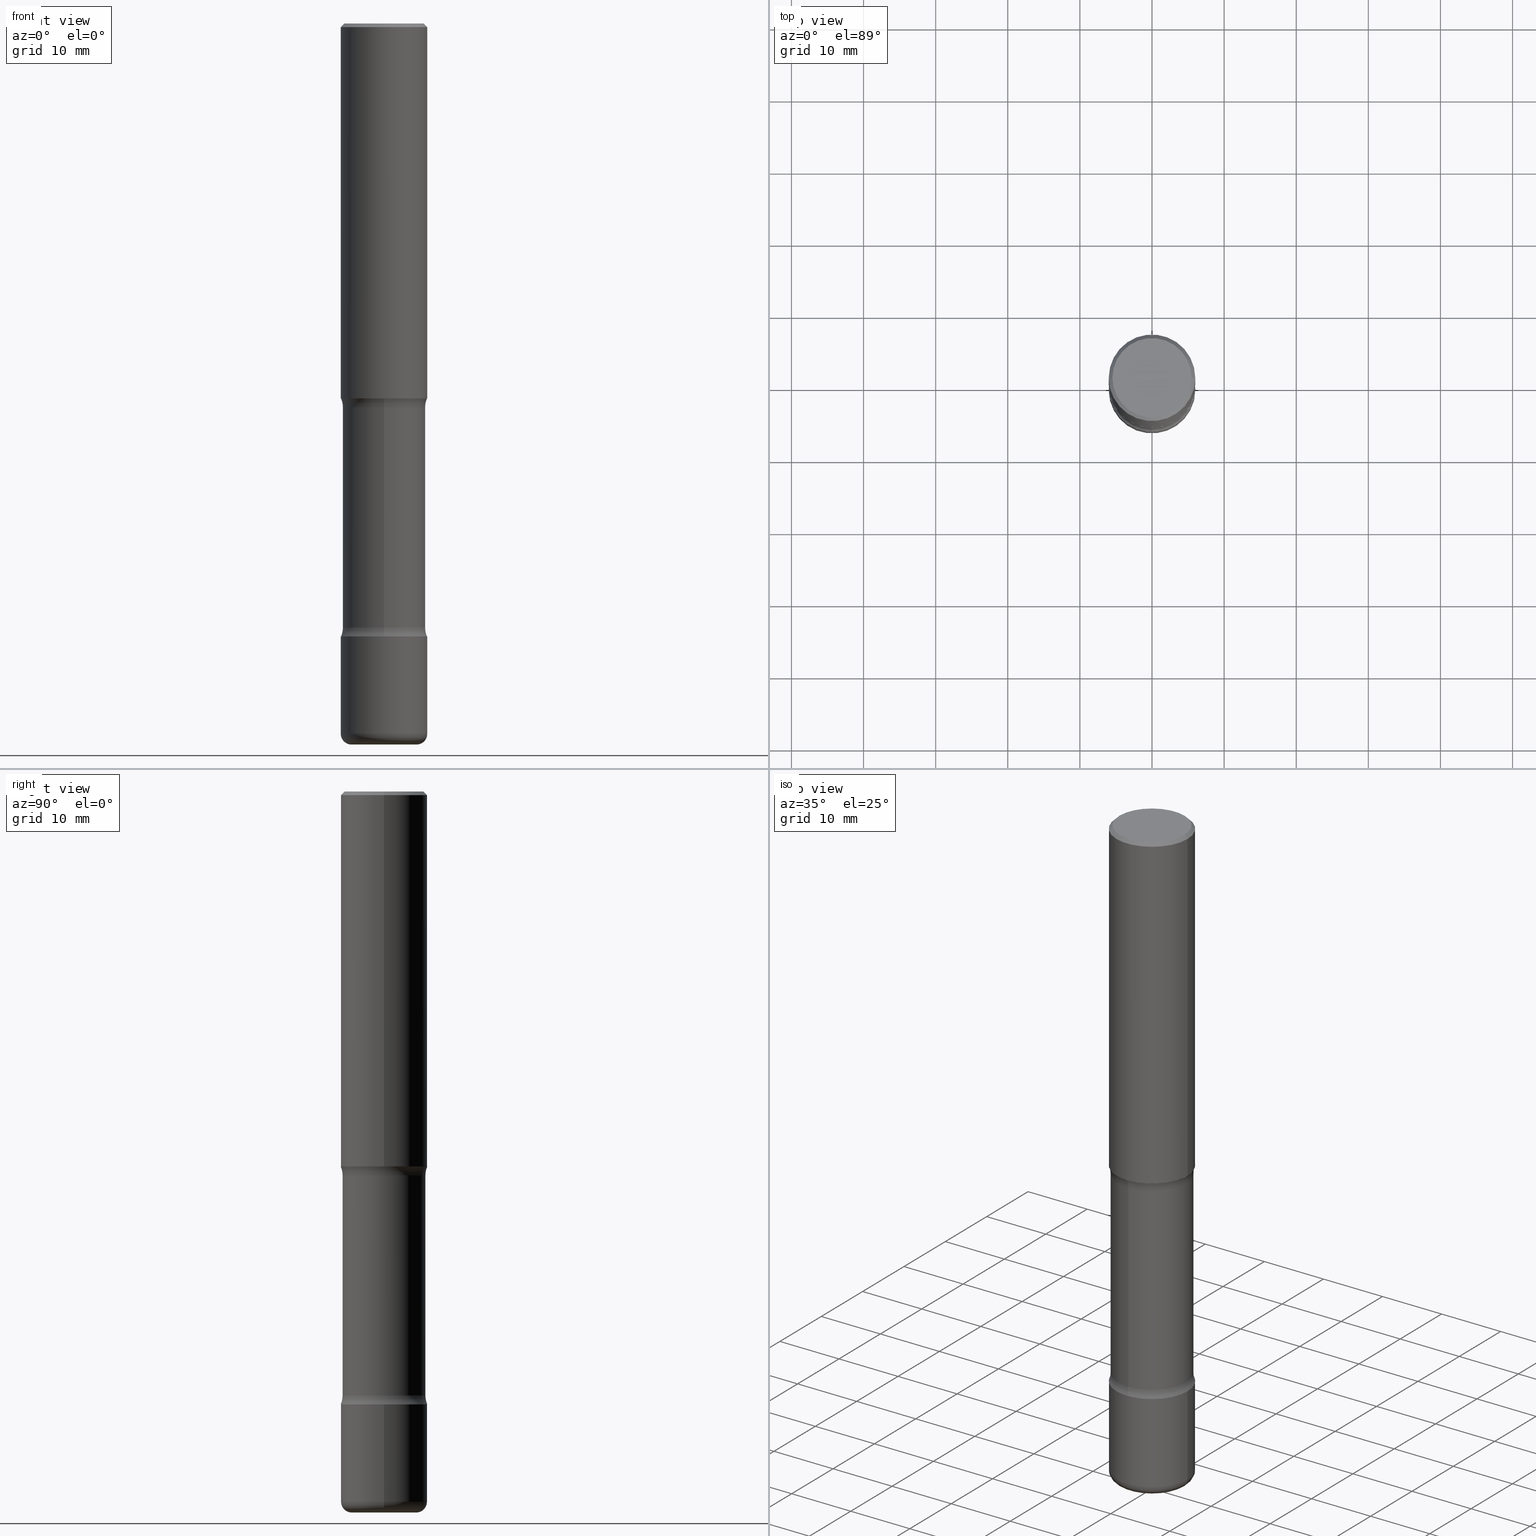
[diagram: canonical four-view strip — front | top / right | iso, engineering-drawing reading convention]
A machine part, canonical four-view strip (front | top / right | iso — engineering-drawing reading convention). The complete STEP part file that produces these views, byte-faithful:
ISO-10303-21;
HEADER;
FILE_DESCRIPTION (( 'STEP AP203' ),
    '1' );
FILE_NAME ('46929.STEP',
    '2024-03-02T05:54:14',
    ( '' ),
    ( '' ),
    'SwSTEP 2.0',
    'SolidWorks 2023',
    '' );
FILE_SCHEMA (( 'CONFIG_CONTROL_DESIGN' ));
ENDSEC;

DATA;
#1 = CARTESIAN_POINT ( 'NONE',  ( 4.890937612370289799E-31, -6.982962677686315028E-17, -0.02000000000000006981 ) ) ;
#2 = AXIS2_PLACEMENT_3D ( 'NONE', #178, #446, #438 ) ;
#3 = EDGE_LOOP ( 'NONE', ( #406, #359, #556, #219 ) ) ;
#4 = EDGE_CURVE ( 'NONE', #549, #187, #442, .T. ) ;
#5 = LOCAL_TIME ( 0, 54, 14.00000000000000000, #242 ) ;
#6 = ORIENTED_EDGE ( 'NONE', *, *, #88, .F. ) ;
#7 = DIRECTION ( 'NONE',  ( -2.445468806185136597E-29, 3.491481338843145583E-15, 1.000000000000000000 ) ) ;
#8 = CC_DESIGN_PERSON_AND_ORGANIZATION_ASSIGNMENT ( #99, #329, ( #403 ) ) ;
#9 = FACE_OUTER_BOUND ( 'NONE', #130, .T. ) ;
#10 = ADVANCED_FACE ( 'NONE', ( #9 ), #181, .T. ) ;
#11 = CIRCLE ( 'NONE', #391, 0.1250000000000000278 ) ;
#12 = DIRECTION ( 'NONE',  ( -2.445468806185136597E-29, 3.491481338843145583E-15, 1.000000000000000000 ) ) ;
#13 = ORIENTED_EDGE ( 'NONE', *, *, #229, .T. ) ;
#14 = AXIS2_PLACEMENT_3D ( 'NONE', #38, #117, #294 ) ;
#15 = CARTESIAN_POINT ( 'NONE',  ( 5.413454317901524856E-29, -6.910660360295560245E-15, -2.096656647682592745 ) ) ;
#16 = ORIENTED_EDGE ( 'NONE', *, *, #167, .F. ) ;
#17 = CARTESIAN_POINT ( 'NONE',  ( -0.2162000000000002531, 1.544631344304203944E-15, -1.707404996041232555E-17 ) ) ;
#18 = DIRECTION ( 'NONE',  ( -2.445468806185136597E-29, 3.491481338843145583E-15, 1.000000000000000000 ) ) ;
#19 = AXIS2_PLACEMENT_3D ( 'NONE', #450, #43, #191 ) ;
#20 = DIRECTION ( 'NONE',  ( 6.982962677686265133E-15, 1.000000000000000000, -4.835129192326128634E-15 ) ) ;
#21 = TOROIDAL_SURFACE ( 'NONE', #2, 0.3510000000000000342, 0.1250000000000000278 ) ;
#22 = DIRECTION ( 'NONE',  ( 6.982962677686265922E-15, 1.000000000000000000, -4.626330217890361448E-15 ) ) ;
#23 = PERSON_AND_ORGANIZATION_ROLE ( 'design_owner' ) ;
#24 = CARTESIAN_POINT ( 'NONE',  ( 1.649375784469580539E-15, 0.2361999999999887245, -3.346400000000000041 ) ) ;
#25 =( NAMED_UNIT ( * ) PLANE_ANGLE_UNIT ( ) SI_UNIT ( $, .RADIAN. ) );
#26 = DIRECTION ( 'NONE',  ( -6.982962677686265133E-15, -1.000000000000000000, 0.000000000000000000 ) ) ;
#27 = AXIS2_PLACEMENT_3D ( 'NONE', #156, #325, #63 ) ;
#28 = EDGE_CURVE ( 'NONE', #78, #226, #173, .T. ) ;
#29 = AXIS2_PLACEMENT_3D ( 'NONE', #210, #426, #79 ) ;
#30 = PLANE ( 'NONE',  #186 ) ;
#31 = ORIENTED_EDGE ( 'NONE', *, *, #106, .T. ) ;
#32 = AXIS2_PLACEMENT_3D ( 'NONE', #535, #457, #147 ) ;
#33 = DIRECTION ( 'NONE',  ( 2.207249558311628199E-29, -3.832624860395576133E-15, -1.000000000000000000 ) ) ;
#34 = ORIENTED_EDGE ( 'NONE', *, *, #346, .T. ) ;
#35 = DIRECTION ( 'NONE',  ( 2.207249558311628480E-29, -3.832624860395576133E-15, -1.000000000000000000 ) ) ;
#36 = ORIENTED_EDGE ( 'NONE', *, *, #155, .F. ) ;
#37 = AXIS2_PLACEMENT_3D ( 'NONE', #177, #529, #493 ) ;
#38 = CARTESIAN_POINT ( 'NONE',  ( 4.890937612370289799E-31, -6.982962677686315028E-17, -0.02000000000000006981 ) ) ;
#39 = ORIENTED_EDGE ( 'NONE', *, *, #281, .T. ) ;
#40 = DIRECTION ( 'NONE',  ( -0.7071067811865471286, 2.468850131082252722E-15, -0.7071067811865479058 ) ) ;
#41 = EDGE_LOOP ( 'NONE', ( #523, #126, #221, #256 ) ) ;
#42 = CARTESIAN_POINT ( 'NONE',  ( -1.620449627073582225E-15, -0.2362000000000066546, -2.047199999999999243 ) ) ;
#43 = DIRECTION ( 'NONE',  ( 2.207249558311628480E-29, -3.832624860395576133E-15, -1.000000000000000000 ) ) ;
#44 = DIRECTION ( 'NONE',  ( 1.000000000000000000, -6.982962677686266711E-15, 4.876176775795935232E-29 ) ) ;
#45 = AXIS2_PLACEMENT_3D ( 'NONE', #544, #419, #205 ) ;
#46 = ORIENTED_EDGE ( 'NONE', *, *, #462, .T. ) ;
#47 = CC_DESIGN_PERSON_AND_ORGANIZATION_ASSIGNMENT ( #285, #23, ( #437 ) ) ;
#48 = FACE_OUTER_BOUND ( 'NONE', #75, .T. ) ;
#49 = ORIENTED_EDGE ( 'NONE', *, *, #73, .F. ) ;
#50 = CARTESIAN_POINT ( 'NONE',  ( 9.487118402156788789E-29, -1.394744139485432957E-14, -3.937000000000000277 ) ) ;
#51 = EDGE_LOOP ( 'NONE', ( #179, #526, #53, #230 ) ) ;
#52 = DIRECTION ( 'NONE',  ( 6.982962677686265922E-15, 1.000000000000000000, -3.469747663417777397E-15 ) ) ;
#53 = ORIENTED_EDGE ( 'NONE', *, *, #189, .F. ) ;
#54 = TOROIDAL_SURFACE ( 'NONE', #370, 0.1771000000000005625, 0.05909999999999970138 ) ;
#55 = EDGE_CURVE ( 'NONE', #470, #90, #72, .T. ) ;
#56 =( NAMED_UNIT ( * ) SI_UNIT ( $, .STERADIAN. ) SOLID_ANGLE_UNIT ( ) );
#57 = CARTESIAN_POINT ( 'NONE',  ( 9.483283483505341216E-29, -1.353961548389983459E-14, -3.877900000000000347 ) ) ;
#58 = LOCAL_TIME ( 0, 54, 14.00000000000000000, #543 ) ;
#59 = PLANE ( 'NONE',  #32 ) ;
#60 = DIRECTION ( 'NONE',  ( 2.207249558311628480E-29, -3.832624860395576133E-15, -1.000000000000000000 ) ) ;
#61 = ADVANCED_BREP_SHAPE_REPRESENTATION ( '46929', ( #304, #491, #499, #533 ), #227 ) ;
#62 = APPLICATION_PROTOCOL_DEFINITION ( 'international standard', 'config_control_design', 1994, #433 ) ;
#63 = DIRECTION ( 'NONE',  ( 1.000000000000000000, -6.982962677686263555E-15, 0.000000000000000000 ) ) ;
#64 = AXIS2_PLACEMENT_3D ( 'NONE', #275, #311, #267 ) ;
#65 =( LENGTH_UNIT ( ) NAMED_UNIT ( * ) SI_UNIT ( $, .METRE. ) );
#66 = CARTESIAN_POINT ( 'NONE',  ( 2.451019899867960221E-15, 0.3509999999999884879, -3.296943352317407872 ) ) ;
#67 = CC_DESIGN_APPROVAL ( #461, ( #515 ) ) ;
#68 = DATE_AND_TIME ( #460, #5 ) ;
#69 = DIRECTION ( 'NONE',  ( 1.000000000000000000, -6.860497997771530774E-15, 4.836621076406952606E-29 ) ) ;
#70 = COORDINATED_UNIVERSAL_TIME_OFFSET ( 5, 0, .BEHIND. ) ;
#71 = FACE_OUTER_BOUND ( 'NONE', #319, .T. ) ;
#72 = CIRCLE ( 'NONE', #440, 0.05909999999999972220 ) ;
#73 = EDGE_CURVE ( 'NONE', #514, #80, #194, .T. ) ;
#74 = CIRCLE ( 'NONE', #330, 0.2162000000000002531 ) ;
#75 = EDGE_LOOP ( 'NONE', ( #351, #6, #427, #381 ) ) ;
#76 = APPROVAL_PERSON_ORGANIZATION ( #360, #214, #327 ) ;
#77 = DIRECTION ( 'NONE',  ( 2.438088387897960049E-29, -3.491481338843145188E-15, -1.000000000000000000 ) ) ;
#78 = VERTEX_POINT ( 'NONE', #459 ) ;
#79 = DIRECTION ( 'NONE',  ( 1.000000000000000000, -6.982962677686266711E-15, 4.876176775795935232E-29 ) ) ;
#80 = VERTEX_POINT ( 'NONE', #288 ) ;
#81 = CIRCLE ( 'NONE', #27, 0.2362000000000005762 ) ;
#82 = PLANE ( 'NONE',  #206 ) ;
#83 = EDGE_CURVE ( 'NONE', #310, #166, #490, .T. ) ;
#84 = ORIENTED_EDGE ( 'NONE', *, *, #313, .T. ) ;
#85 = PRODUCT_DEFINITION_FORMATION_WITH_SPECIFIED_SOURCE ( 'ANY', '', #437, .NOT_KNOWN. ) ;
#86 = DIRECTION ( 'NONE',  ( 6.982962677686265922E-15, 1.000000000000000000, -4.835129192326135734E-15 ) ) ;
#87 = ORIENTED_EDGE ( 'NONE', *, *, #369, .F. ) ;
#88 = EDGE_CURVE ( 'NONE', #226, #78, #249, .T. ) ;
#89 = DIRECTION ( 'NONE',  ( 2.207249558311628199E-29, -3.832624860395576133E-15, -1.000000000000000000 ) ) ;
#90 = VERTEX_POINT ( 'NONE', #331 ) ;
#91 = FACE_OUTER_BOUND ( 'NONE', #361, .T. ) ;
#92 = AXIS2_PLACEMENT_3D ( 'NONE', #153, #240, #22 ) ;
#93 = EDGE_LOOP ( 'NONE', ( #263, #39, #13, #560 ) ) ;
#94 = DIRECTION ( 'NONE',  ( -1.000000000000000000, 6.982962677686265922E-15, -4.876176775795935793E-29 ) ) ;
#95 = ORIENTED_EDGE ( 'NONE', *, *, #409, .F. ) ;
#96 = CARTESIAN_POINT ( 'NONE',  ( 0.2162000000000002531, -1.586759460484353960E-15, -1.707404996039081677E-17 ) ) ;
#97 = CARTESIAN_POINT ( 'NONE',  ( 0.2362000000000004651, -1.649375784469499483E-15, 1.151752954443002330E-29 ) ) ;
#98 = ADVANCED_FACE ( 'NONE', ( #411 ), #241, .F. ) ;
#99 = PERSON_AND_ORGANIZATION ( #163, #291 ) ;
#100 = DIRECTION ( 'NONE',  ( 6.982962677686265133E-15, 1.000000000000000000, -4.835129192326128634E-15 ) ) ;
#101 = AXIS2_PLACEMENT_3D ( 'NONE', #328, #18, #193 ) ;
#102 = EDGE_CURVE ( 'NONE', #260, #514, #134, .T. ) ;
#103 = CALENDAR_DATE ( 2024, 2, 3 ) ;
#104 = CARTESIAN_POINT ( 'NONE',  ( -2.408034797217727156E-15, -0.3510000000000115805, -3.296943352317405651 ) ) ;
#105 = CIRCLE ( 'NONE', #547, 0.2362000000000004096 ) ;
#106 = EDGE_CURVE ( 'NONE', #170, #80, #11, .T. ) ;
#107 = EDGE_CURVE ( 'NONE', #90, #487, #371, .T. ) ;
#108 =( CONVERSION_BASED_UNIT ( 'INCH', #537 ) LENGTH_UNIT ( ) NAMED_UNIT ( #342 ) );
#109 = DIRECTION ( 'NONE',  ( -2.445468806185136597E-29, 3.491481338843145583E-15, 1.000000000000000000 ) ) ;
#110 = PERSON_AND_ORGANIZATION ( #163, #291 ) ;
#111 = DIRECTION ( 'NONE',  ( 2.207249558311628480E-29, -3.832624860395576133E-15, -1.000000000000000000 ) ) ;
#112 = CIRCLE ( 'NONE', #451, 0.2260000000000000342 ) ;
#113 = CARTESIAN_POINT ( 'NONE',  ( 0.2362000000000004096, -1.518899126836933270E-14, -3.877900000000000347 ) ) ;
#114 = DIRECTION ( 'NONE',  ( 6.982962677686265922E-15, 1.000000000000000000, -3.626346894244606533E-15 ) ) ;
#115 = DIRECTION ( 'NONE',  ( 1.000000000000000000, -6.982962677686261977E-15, 0.000000000000000000 ) ) ;
#116 = ADVANCED_FACE ( 'NONE', ( #362 ), #428, .T. ) ;
#117 = DIRECTION ( 'NONE',  ( 2.445468806185136597E-29, -3.491481338843145583E-15, -1.000000000000000000 ) ) ;
#118 = VECTOR ( 'NONE', #483, 39.37007874015748143 ) ;
#119 = ORIENTED_EDGE ( 'NONE', *, *, #281, .F. ) ;
#120 = CIRCLE ( 'NONE', #45, 0.2362000000000005762 ) ;
#121 = CARTESIAN_POINT ( 'NONE',  ( 9.627810689950881427E-29, -1.374596203102546184E-14, -3.936999999999999389 ) ) ;
#122 = ORIENTED_EDGE ( 'NONE', *, *, #297, .F. ) ;
#123 = CARTESIAN_POINT ( 'NONE',  ( -0.2362000000000002709, 1.579546157692635002E-15, -0.02000000000000006981 ) ) ;
#124 = EDGE_LOOP ( 'NONE', ( #95, #558 ) ) ;
#125 = DIRECTION ( 'NONE',  ( 1.000000000000000000, -6.982962677686265133E-15, 0.000000000000000000 ) ) ;
#126 = ORIENTED_EDGE ( 'NONE', *, *, #107, .T. ) ;
#127 = CIRCLE ( 'NONE', #296, 0.2162000000000002531 ) ;
#128 = DIRECTION ( 'NONE',  ( 2.207249558311628480E-29, -3.832624860395576133E-15, -1.000000000000000000 ) ) ;
#129 = CARTESIAN_POINT ( 'NONE',  ( -0.1771000000000005625, -1.217445219401440118E-14, -3.936999999999999389 ) ) ;
#130 = EDGE_LOOP ( 'NONE', ( #339, #390, #253, #386 ) ) ;
#131 = ADVANCED_FACE ( 'NONE', ( #538 ), #247, .F. ) ;
#132 = DIRECTION ( 'NONE',  ( 2.207249558311628480E-29, -3.832624860395576133E-15, -1.000000000000000000 ) ) ;
#133 = EDGE_LOOP ( 'NONE', ( #425, #466, #295, #479 ) ) ;
#134 = CIRCLE ( 'NONE', #527, 0.1250000000000000278 ) ;
#135 = EDGE_CURVE ( 'NONE', #90, #549, #81, .T. ) ;
#136 = CARTESIAN_POINT ( 'NONE',  ( -0.2362000000000004096, 1.678301941865359550E-15, -1.161852468318210719E-29 ) ) ;
#137 = AXIS2_PLACEMENT_3D ( 'NONE', #424, #165, #169 ) ;
#138 = EDGE_LOOP ( 'NONE', ( #235, #36, #31, #274 ) ) ;
#139 = EDGE_CURVE ( 'NONE', #187, #487, #401, .T. ) ;
#140 = CARTESIAN_POINT ( 'NONE',  ( 5.315858186859473154E-29, -6.704546933678770212E-15, -2.047200000000000131 ) ) ;
#141 = ORIENTED_EDGE ( 'NONE', *, *, #139, .T. ) ;
#142 = DATE_AND_TIME ( #103, #58 ) ;
#143 = DIRECTION ( 'NONE',  ( 2.207249558311628480E-29, -3.832624860395576133E-15, -1.000000000000000000 ) ) ;
#144 = EDGE_CURVE ( 'NONE', #549, #90, #120, .T. ) ;
#145 = FACE_OUTER_BOUND ( 'NONE', #41, .T. ) ;
#146 = TOROIDAL_SURFACE ( 'NONE', #234, 0.3509999999999994791, 0.1250000000000000000 ) ;
#147 = DIRECTION ( 'NONE',  ( -1.000000000000000000, 6.982962677686265922E-15, -4.876176775795935793E-29 ) ) ;
#148 = CARTESIAN_POINT ( 'NONE',  ( -0.2362000000000004651, 1.678301941865359944E-15, -1.161852468318210999E-29 ) ) ;
#149 = LOCAL_TIME ( 0, 54, 14.00000000000000000, #422 ) ;
#150 = APPLICATION_PROTOCOL_DEFINITION ( 'international standard', 'config_control_design', 1994, #154 ) ;
#151 = CYLINDRICAL_SURFACE ( 'NONE', #101, 0.2362000000000004651 ) ;
#152 = APPROVAL_ROLE ( '' ) ;
#153 = CARTESIAN_POINT ( 'NONE',  ( 8.183516813017940998E-29, -1.168389315230470136E-14, -3.346399999999999597 ) ) ;
#154 = APPLICATION_CONTEXT ( 'configuration controlled 3d designs of mechanical parts and assemblies' ) ;
#155 = EDGE_CURVE ( 'NONE', #170, #260, #443, .T. ) ;
#156 = CARTESIAN_POINT ( 'NONE',  ( 9.483283483505341216E-29, -1.353961548389983459E-14, -3.877900000000000347 ) ) ;
#157 = CALENDAR_DATE ( 2024, 2, 3 ) ;
#158 = DIRECTION ( 'NONE',  ( 2.207249558311627919E-29, -3.832624860395576133E-15, -1.000000000000000000 ) ) ;
#159 = EDGE_CURVE ( 'NONE', #260, #170, #217, .T. ) ;
#160 = EDGE_LOOP ( 'NONE', ( #87, #551, #84, #49 ) ) ;
#161 = DIRECTION ( 'NONE',  ( 6.982962677686265922E-15, 1.000000000000000000, -3.469747663417777397E-15 ) ) ;
#162 = VERTEX_POINT ( 'NONE', #508 ) ;
#163 = PERSON ( 'UNSPECIFIED', 'UNSPECIFIED', 'UNSPECIFIED', ('UNSPECIFIED'), ('UNSPECIFIED'), ('UNSPECIFIED') ) ;
#164 = CIRCLE ( 'NONE', #315, 0.1771000000000005625 ) ;
#165 = DIRECTION ( 'NONE',  ( -2.445468806185136597E-29, 3.491481338843145583E-15, 1.000000000000000000 ) ) ;
#166 = VERTEX_POINT ( 'NONE', #452 ) ;
#167 = EDGE_CURVE ( 'NONE', #525, #353, #127, .T. ) ;
#168 = CC_DESIGN_APPROVAL ( #305, ( #85 ) ) ;
#169 = DIRECTION ( 'NONE',  ( 1.000000000000000000, -6.982962677686269077E-15, 0.000000000000000000 ) ) ;
#170 = VERTEX_POINT ( 'NONE', #24 ) ;
#171 = DIRECTION ( 'NONE',  ( 2.207249558311628480E-29, -3.832624860395576133E-15, -1.000000000000000000 ) ) ;
#172 = EDGE_LOOP ( 'NONE', ( #300, #119 ) ) ;
#173 = CIRCLE ( 'NONE', #19, 0.2259999999999994236 ) ;
#174 = VECTOR ( 'NONE', #441, 39.37007874015748143 ) ;
#175 = CC_DESIGN_PERSON_AND_ORGANIZATION_ASSIGNMENT ( #343, #384, ( #85 ) ) ;
#176 = DIRECTION ( 'NONE',  ( 1.000000000000000000, -6.982962677686266711E-15, 4.875778670202480222E-29 ) ) ;
#177 = CARTESIAN_POINT ( 'NONE',  ( 0.000000000000000000, 0.000000000000000000, 0.000000000000000000 ) ) ;
#178 = CARTESIAN_POINT ( 'NONE',  ( 8.062572123851672091E-29, -1.151121618983918756E-14, -3.296943352317406983 ) ) ;
#179 = ORIENTED_EDGE ( 'NONE', *, *, #88, .T. ) ;
#180 = DIRECTION ( 'NONE',  ( -2.445468806185136597E-29, 3.491481338843145583E-15, 1.000000000000000000 ) ) ;
#181 = CYLINDRICAL_SURFACE ( 'NONE', #37, 0.2362000000000004651 ) ;
#182 = AXIS2_PLACEMENT_3D ( 'NONE', #57, #196, #286 ) ;
#183 = ADVANCED_FACE ( 'NONE', ( #145 ), #151, .T. ) ;
#184 = CARTESIAN_POINT ( 'NONE',  ( 9.627810689950881427E-29, -1.374596203102546184E-14, -3.936999999999999389 ) ) ;
#185 = CONICAL_SURFACE ( 'NONE', #503, 0.2362000000000002709, 0.7853981633974477239 ) ;
#186 = AXIS2_PLACEMENT_3D ( 'NONE', #220, #306, #218 ) ;
#187 = VERTEX_POINT ( 'NONE', #502 ) ;
#188 = CC_DESIGN_DATE_AND_TIME_ASSIGNMENT ( #553, #379, ( #515 ) ) ;
#189 = EDGE_CURVE ( 'NONE', #80, #514, #112, .T. ) ;
#190 = DIRECTION ( 'NONE',  ( 6.982962677686265922E-15, 1.000000000000000000, -3.832624860395576133E-15 ) ) ;
#191 = DIRECTION ( 'NONE',  ( 6.982962677686265922E-15, 1.000000000000000000, -3.626346894244606533E-15 ) ) ;
#192 = ADVANCED_FACE ( 'NONE', ( #71 ), #30, .F. ) ;
#193 = DIRECTION ( 'NONE',  ( 1.000000000000000000, -6.982962677686266711E-15, 4.876176775795935793E-29 ) ) ;
#194 = CIRCLE ( 'NONE', #321, 0.2260000000000000342 ) ;
#195 = DATE_TIME_ROLE ( 'creation_date' ) ;
#196 = DIRECTION ( 'NONE',  ( -2.445468806185136597E-29, 3.491481338843145583E-15, 1.000000000000000000 ) ) ;
#197 = AXIS2_PLACEMENT_3D ( 'NONE', #513, #171, #161 ) ;
#198 = MECHANICAL_CONTEXT ( 'NONE', #154, 'mechanical' ) ;
#199 = DIRECTION ( 'NONE',  ( 1.000000000000000000, -6.982962677686266711E-15, 0.000000000000000000 ) ) ;
#200 = APPROVAL_PERSON_ORGANIZATION ( #110, #305, #152 ) ;
#201 = DIRECTION ( 'NONE',  ( 0.000000000000000000, 0.000000000000000000, 1.000000000000000000 ) ) ;
#202 = DIRECTION ( 'NONE',  ( 2.207249558311628480E-29, -3.832624860395576133E-15, -1.000000000000000000 ) ) ;
#203 = DATE_AND_TIME ( #429, #149 ) ;
#204 = AXIS2_PLACEMENT_3D ( 'NONE', #505, #109, #199 ) ;
#205 = DIRECTION ( 'NONE',  ( 1.000000000000000000, -6.982962677686263555E-15, 0.000000000000000000 ) ) ;
#206 = AXIS2_PLACEMENT_3D ( 'NONE', #255, #158, #389 ) ;
#207 = CARTESIAN_POINT ( 'NONE',  ( 0.1771000000000005625, -1.477629817411807505E-14, -3.877900000000000347 ) ) ;
#208 = ORIENTED_EDGE ( 'NONE', *, *, #28, .F. ) ;
#209 = APPROVAL_ROLE ( '' ) ;
#210 = CARTESIAN_POINT ( 'NONE',  ( 0.000000000000000000, 0.000000000000000000, 0.000000000000000000 ) ) ;
#211 = EDGE_LOOP ( 'NONE', ( #476, #436, #268, #272 ) ) ;
#212 = PERSON_AND_ORGANIZATION ( #163, #291 ) ;
#213 = CLOSED_SHELL ( 'NONE', ( #447, #431, #326, #511, #192, #332 ) ) ;
#214 = APPROVAL ( #496, 'UNSPECIFIED' ) ;
#215 = FACE_OUTER_BOUND ( 'NONE', #3, .T. ) ;
#216 = ORIENTED_EDGE ( 'NONE', *, *, #144, .F. ) ;
#217 = CIRCLE ( 'NONE', #530, 0.2362000000000004096 ) ;
#218 = DIRECTION ( 'NONE',  ( 1.000000000000000000, -6.982962677686265922E-15, 4.876176775795935793E-29 ) ) ;
#219 = ORIENTED_EDGE ( 'NONE', *, *, #83, .F. ) ;
#220 = CARTESIAN_POINT ( 'NONE',  ( 5.006363740022211680E-29, -7.147760596879688202E-15, -2.047200000000000131 ) ) ;
#221 = ORIENTED_EDGE ( 'NONE', *, *, #139, .F. ) ;
#222 = DIRECTION ( 'NONE',  ( 1.000000000000000000, -6.982962677686265133E-15, 0.000000000000000000 ) ) ;
#223 = VERTEX_POINT ( 'NONE', #550 ) ;
#224 = AXIS2_PLACEMENT_3D ( 'NONE', #231, #358, #233 ) ;
#225 = CARTESIAN_POINT ( 'NONE',  ( 4.175405657340879278E-46, -5.961372681521788801E-32, -1.707404996040164512E-17 ) ) ;
#226 = VERTEX_POINT ( 'NONE', #434 ) ;
#227 =( GEOMETRIC_REPRESENTATION_CONTEXT ( 3 ) GLOBAL_UNCERTAINTY_ASSIGNED_CONTEXT ( ( #494 ) ) GLOBAL_UNIT_ASSIGNED_CONTEXT ( ( #108, #25, #56 ) ) REPRESENTATION_CONTEXT ( 'NONE', 'WORKASPACE' ) );
#228 = FACE_OUTER_BOUND ( 'NONE', #211, .T. ) ;
#229 = EDGE_CURVE ( 'NONE', #223, #549, #414, .T. ) ;
#230 = ORIENTED_EDGE ( 'NONE', *, *, #313, .F. ) ;
#231 = CARTESIAN_POINT ( 'NONE',  ( 4.890937612370289799E-31, -6.982962677686315028E-17, -0.02000000000000006981 ) ) ;
#232 = ORIENTED_EDGE ( 'NONE', *, *, #155, .T. ) ;
#233 = DIRECTION ( 'NONE',  ( 1.000000000000000000, -6.982962677686266711E-15, 0.000000000000000000 ) ) ;
#234 = AXIS2_PLACEMENT_3D ( 'NONE', #15, #132, #190 ) ;
#235 = ORIENTED_EDGE ( 'NONE', *, *, #102, .F. ) ;
#236 = ADVANCED_FACE ( 'NONE', ( #474 ), #82, .F. ) ;
#237 = DIRECTION ( 'NONE',  ( -2.445468806185136597E-29, 3.491481338843145583E-15, 1.000000000000000000 ) ) ;
#238 = ADVANCED_FACE ( 'NONE', ( #372 ), #559, .T. ) ;
#239 = CALENDAR_DATE ( 2024, 2, 3 ) ;
#240 = DIRECTION ( 'NONE',  ( 2.207249558311628480E-29, -3.832624860395576133E-15, -1.000000000000000000 ) ) ;
#241 = TOROIDAL_SURFACE ( 'NONE', #552, 0.3510000000000000342, 0.1250000000000000278 ) ;
#242 = COORDINATED_UNIVERSAL_TIME_OFFSET ( 5, 0, .BEHIND. ) ;
#243 = EDGE_CURVE ( 'NONE', #525, #310, #472, .T. ) ;
#244 = CARTESIAN_POINT ( 'NONE',  ( 8.183516813017940998E-29, -1.168389315230470136E-14, -3.346399999999999597 ) ) ;
#245 = DIRECTION ( 'NONE',  ( 1.000000000000000000, -6.982962677686266711E-15, 4.875778670202480222E-29 ) ) ;
#246 = ADVANCED_FACE ( 'NONE', ( #252 ), #338, .T. ) ;
#247 = PLANE ( 'NONE',  #277 ) ;
#248 = APPROVAL_DATE_TIME ( #68, #305 ) ;
#249 = CIRCLE ( 'NONE', #412, 0.2259999999999994236 ) ;
#250 = CARTESIAN_POINT ( 'NONE',  ( -0.2362000000000002709, 1.579546157692635002E-15, -0.02000000000000006981 ) ) ;
#251 = VECTOR ( 'NONE', #40, 39.37007874015748143 ) ;
#252 = FACE_OUTER_BOUND ( 'NONE', #172, .T. ) ;
#253 = ORIENTED_EDGE ( 'NONE', *, *, #4, .T. ) ;
#254 = CC_DESIGN_SECURITY_CLASSIFICATION ( #515, ( #85 ) ) ;
#255 = CARTESIAN_POINT ( 'NONE',  ( 5.006363740022211680E-29, -7.147760596879688202E-15, -2.047200000000000131 ) ) ;
#256 = ORIENTED_EDGE ( 'NONE', *, *, #4, .F. ) ;
#257 = PERSON_AND_ORGANIZATION_ROLE ( 'classification_officer' ) ;
#258 = DIRECTION ( 'NONE',  ( 1.000000000000000000, -6.860497997771530774E-15, 4.836621076406952606E-29 ) ) ;
#259 = EDGE_CURVE ( 'NONE', #373, #349, #270, .T. ) ;
#260 = VERTEX_POINT ( 'NONE', #548 ) ;
#261 = VECTOR ( 'NONE', #335, 39.37007874015748143 ) ;
#262 = DIRECTION ( 'NONE',  ( -1.000000000000000000, 6.982962677686265922E-15, -4.876176775795935793E-29 ) ) ;
#263 = ORIENTED_EDGE ( 'NONE', *, *, #55, .F. ) ;
#264 = FACE_OUTER_BOUND ( 'NONE', #473, .T. ) ;
#265 = EDGE_LOOP ( 'NONE', ( #232, #276 ) ) ;
#266 = EDGE_CURVE ( 'NONE', #226, #349, #394, .T. ) ;
#267 = DIRECTION ( 'NONE',  ( 6.982962677686265922E-15, 1.000000000000000000, -3.832624860395576133E-15 ) ) ;
#268 = ORIENTED_EDGE ( 'NONE', *, *, #492, .F. ) ;
#269 = EDGE_CURVE ( 'NONE', #78, #373, #382, .T. ) ;
#270 = CIRCLE ( 'NONE', #197, 0.2361999999999999933 ) ;
#271 = CYLINDRICAL_SURFACE ( 'NONE', #495, 0.2259999999999997289 ) ;
#272 = ORIENTED_EDGE ( 'NONE', *, *, #396, .F. ) ;
#273 = CYLINDRICAL_SURFACE ( 'NONE', #308, 0.2362000000000004096 ) ;
#274 = ORIENTED_EDGE ( 'NONE', *, *, #189, .T. ) ;
#275 = CARTESIAN_POINT ( 'NONE',  ( 5.413454317901524856E-29, -6.910660360295560245E-15, -2.096656647682592745 ) ) ;
#276 = ORIENTED_EDGE ( 'NONE', *, *, #159, .T. ) ;
#277 = AXIS2_PLACEMENT_3D ( 'NONE', #415, #323, #546 ) ;
#278 = DIRECTION ( 'NONE',  ( 1.000000000000000000, -6.982962677686268288E-15, 0.000000000000000000 ) ) ;
#279 = AXIS2_PLACEMENT_3D ( 'NONE', #347, #77, #262 ) ;
#280 = DIRECTION ( 'NONE',  ( 2.207249558311628480E-29, -3.832624860395576133E-15, -1.000000000000000000 ) ) ;
#281 = EDGE_CURVE ( 'NONE', #470, #223, #363, .T. ) ;
#282 = COORDINATED_UNIVERSAL_TIME_OFFSET ( 5, 0, .BEHIND. ) ;
#283 = LOCAL_TIME ( 0, 54, 14.00000000000000000, #282 ) ;
#284 = CARTESIAN_POINT ( 'NONE',  ( 8.074353649264964625E-29, -1.149434437488457045E-14, -3.296943352317406983 ) ) ;
#285 = PERSON_AND_ORGANIZATION ( #163, #291 ) ;
#286 = DIRECTION ( 'NONE',  ( 1.000000000000000000, -6.982962677686265133E-15, 4.883557194083111780E-29 ) ) ;
#287 = DIRECTION ( 'NONE',  ( -2.445468806185136597E-29, 3.491481338843145583E-15, 1.000000000000000000 ) ) ;
#288 = CARTESIAN_POINT ( 'NONE',  ( 1.578149565157176882E-15, 0.2259999999999885156, -3.296943352317407872 ) ) ;
#289 = AXIS2_PLACEMENT_3D ( 'NONE', #532, #405, #94 ) ;
#290 = CC_DESIGN_PERSON_AND_ORGANIZATION_ASSIGNMENT ( #507, #471, ( #85 ) ) ;
#291 = ORGANIZATION ( 'UNSPECIFIED', 'UNSPECIFIED', '' ) ;
#292 = CARTESIAN_POINT ( 'NONE',  ( 5.425021350612449526E-29, -6.894095711098900329E-15, -2.096656647682592745 ) ) ;
#293 = LINE ( 'NONE', #469, #261 ) ;
#294 = DIRECTION ( 'NONE',  ( -1.000000000000000000, 6.982962677686266711E-15, 0.000000000000000000 ) ) ;
#295 = ORIENTED_EDGE ( 'NONE', *, *, #73, .T. ) ;
#296 = AXIS2_PLACEMENT_3D ( 'NONE', #408, #497, #245 ) ;
#297 = EDGE_CURVE ( 'NONE', #353, #166, #293, .T. ) ;
#298 = PERSON_AND_ORGANIZATION ( #163, #291 ) ;
#299 = DIRECTION ( 'NONE',  ( -2.445468806185136597E-29, 3.491481338843145583E-15, 1.000000000000000000 ) ) ;
#300 = ORIENTED_EDGE ( 'NONE', *, *, #346, .F. ) ;
#301 = EDGE_CURVE ( 'NONE', #393, #162, #357, .T. ) ;
#302 = CARTESIAN_POINT ( 'NONE',  ( 1.578149565157189110E-15, 0.2259999999999857956, -3.937000000000001165 ) ) ;
#303 = ORIENTED_EDGE ( 'NONE', *, *, #531, .T. ) ;
#304 = MANIFOLD_SOLID_BREP ( 'Body-Move/Copy2[1]', #377 ) ;
#305 = APPROVAL ( #498, 'UNSPECIFIED' ) ;
#306 = DIRECTION ( 'NONE',  ( -2.438088387897960049E-29, 3.491481338843145188E-15, 1.000000000000000000 ) ) ;
#307 = ORIENTED_EDGE ( 'NONE', *, *, #243, .T. ) ;
#308 = AXIS2_PLACEMENT_3D ( 'NONE', #398, #309, #44 ) ;
#309 = DIRECTION ( 'NONE',  ( -2.445468806185136597E-29, 3.491481338843145583E-15, 1.000000000000000000 ) ) ;
#310 = VERTEX_POINT ( 'NONE', #250 ) ;
#311 = DIRECTION ( 'NONE',  ( 2.207249558311628480E-29, -3.832624860395576133E-15, -1.000000000000000000 ) ) ;
#312 = CARTESIAN_POINT ( 'NONE',  ( -0.1771000000000005625, -1.228124429886869218E-14, -3.877900000000000347 ) ) ;
#313 = EDGE_CURVE ( 'NONE', #226, #80, #421, .T. ) ;
#314 = ORIENTED_EDGE ( 'NONE', *, *, #259, .T. ) ;
#315 = AXIS2_PLACEMENT_3D ( 'NONE', #184, #7, #222 ) ;
#316 = CARTESIAN_POINT ( 'NONE',  ( -0.2362000000000004096, -1.093345237623690843E-14, -3.346399999999999597 ) ) ;
#317 = CARTESIAN_POINT ( 'NONE',  ( 8.074353649264964625E-29, -1.149434437488457045E-14, -3.296943352317406983 ) ) ;
#318 = LINE ( 'NONE', #444, #340 ) ;
#319 = EDGE_LOOP ( 'NONE', ( #489, #399 ) ) ;
#320 = ORIENTED_EDGE ( 'NONE', *, *, #229, .F. ) ;
#321 = AXIS2_PLACEMENT_3D ( 'NONE', #317, #143, #100 ) ;
#322 = AXIS2_PLACEMENT_3D ( 'NONE', #140, #128, #52 ) ;
#323 = DIRECTION ( 'NONE',  ( -2.207249558311627919E-29, 3.832624860395576133E-15, 1.000000000000000000 ) ) ;
#324 = DATE_AND_TIME ( #239, #283 ) ;
#325 = DIRECTION ( 'NONE',  ( -2.445468806185136597E-29, 3.491481338843145583E-15, 1.000000000000000000 ) ) ;
#326 = ADVANCED_FACE ( 'NONE', ( #509 ), #420, .T. ) ;
#327 = APPROVAL_ROLE ( '' ) ;
#328 = CARTESIAN_POINT ( 'NONE',  ( 0.000000000000000000, 0.000000000000000000, 0.000000000000000000 ) ) ;
#329 = PERSON_AND_ORGANIZATION_ROLE ( 'creator' ) ;
#330 = AXIS2_PLACEMENT_3D ( 'NONE', #225, #180, #176 ) ;
#331 = CARTESIAN_POINT ( 'NONE',  ( -0.2362000000000004096, -1.186131354203447347E-14, -3.877900000000000347 ) ) ;
#332 = ADVANCED_FACE ( 'NONE', ( #215 ), #465, .T. ) ;
#333 = CARTESIAN_POINT ( 'NONE',  ( 8.183516813017940998E-29, -1.168389315230470136E-14, -3.346399999999999597 ) ) ;
#334 = SECURITY_CLASSIFICATION_LEVEL ( 'unclassified' ) ;
#335 = DIRECTION ( 'NONE',  ( 0.7071067811865471286, -7.319954787623254468E-15, -0.7071067811865479058 ) ) ;
#336 = ADVANCED_FACE ( 'NONE', ( #380 ), #21, .F. ) ;
#337 = ORIENTED_EDGE ( 'NONE', *, *, #167, .T. ) ;
#338 = PLANE ( 'NONE',  #279 ) ;
#339 = ORIENTED_EDGE ( 'NONE', *, *, #107, .F. ) ;
#340 = VECTOR ( 'NONE', #89, 39.37007874015748143 ) ;
#341 = ADVANCED_FACE ( 'NONE', ( #555 ), #271, .T. ) ;
#342 = DIMENSIONAL_EXPONENTS ( 1.000000000000000000, 0.000000000000000000, 0.000000000000000000, 0.000000000000000000, 0.000000000000000000, 0.000000000000000000, 0.000000000000000000 ) ;
#343 = PERSON_AND_ORGANIZATION ( #163, #291 ) ;
#344 = DIRECTION ( 'NONE',  ( 6.982962677686265922E-15, 1.000000000000000000, -4.835129192326135734E-15 ) ) ;
#345 = ORIENTED_EDGE ( 'NONE', *, *, #492, .T. ) ;
#346 = EDGE_CURVE ( 'NONE', #223, #470, #164, .T. ) ;
#347 = CARTESIAN_POINT ( 'NONE',  ( 1.810931917000548549E-28, -1.599959150103772507E-15, -3.937000000000000277 ) ) ;
#348 = CARTESIAN_POINT ( 'NONE',  ( -2.408034797217749638E-15, -0.3510000000000063625, -2.096656647682591412 ) ) ;
#349 = VERTEX_POINT ( 'NONE', #488 ) ;
#350 = AXIS2_PLACEMENT_3D ( 'NONE', #463, #516, #557 ) ;
#351 = ORIENTED_EDGE ( 'NONE', *, *, #269, .F. ) ;
#352 = PLANE ( 'NONE',  #289 ) ;
#353 = VERTEX_POINT ( 'NONE', #96 ) ;
#354 = LINE ( 'NONE', #136, #522 ) ;
#355 = VECTOR ( 'NONE', #368, 39.37007874015748143 ) ;
#356 = ORIENTED_EDGE ( 'NONE', *, *, #269, .T. ) ;
#357 = CIRCLE ( 'NONE', #137, 0.2362000000000005207 ) ;
#358 = DIRECTION ( 'NONE',  ( -2.445468806185136597E-29, 3.491481338843145583E-15, 1.000000000000000000 ) ) ;
#359 = ORIENTED_EDGE ( 'NONE', *, *, #301, .T. ) ;
#360 = PERSON_AND_ORGANIZATION ( #163, #291 ) ;
#361 = EDGE_LOOP ( 'NONE', ( #519, #402, #345, #448 ) ) ;
#362 = FACE_OUTER_BOUND ( 'NONE', #93, .T. ) ;
#363 = CIRCLE ( 'NONE', #475, 0.1771000000000005625 ) ;
#364 = ADVANCED_FACE ( 'NONE', ( #395 ), #352, .F. ) ;
#365 = DIRECTION ( 'NONE',  ( 1.000000000000000000, -6.982962677686268288E-15, 0.000000000000000000 ) ) ;
#366 = DIRECTION ( 'NONE',  ( 6.982962677686265922E-15, 1.000000000000000000, -3.832624860395576133E-15 ) ) ;
#367 = CC_DESIGN_PERSON_AND_ORGANIZATION_ASSIGNMENT ( #212, #257, ( #515 ) ) ;
#368 = DIRECTION ( 'NONE',  ( -2.445468806185136877E-29, 3.491481338843145188E-15, 1.000000000000000000 ) ) ;
#369 = EDGE_CURVE ( 'NONE', #78, #514, #318, .T. ) ;
#370 = AXIS2_PLACEMENT_3D ( 'NONE', #486, #12, #524 ) ;
#371 = LINE ( 'NONE', #148, #355 ) ;
#372 = FACE_OUTER_BOUND ( 'NONE', #51, .T. ) ;
#373 = VERTEX_POINT ( 'NONE', #42 ) ;
#374 = APPROVAL_DATE_TIME ( #203, #461 ) ;
#375 = DIRECTION ( 'NONE',  ( 6.860497997771529985E-15, 1.000000000000000000, 0.000000000000000000 ) ) ;
#376 = ORIENTED_EDGE ( 'NONE', *, *, #83, .T. ) ;
#377 = CLOSED_SHELL ( 'NONE', ( #183, #467, #246, #116, #10, #364 ) ) ;
#378 = PRODUCT_DEFINITION_SHAPE ( 'NONE', 'NONE',  #403 ) ;
#379 = DATE_TIME_ROLE ( 'classification_date' ) ;
#380 = FACE_OUTER_BOUND ( 'NONE', #138, .T. ) ;
#381 = ORIENTED_EDGE ( 'NONE', *, *, #409, .T. ) ;
#382 = CIRCLE ( 'NONE', #554, 0.1250000000000000000 ) ;
#383 = ADVANCED_FACE ( 'NONE', ( #48 ), #146, .F. ) ;
#384 = PERSON_AND_ORGANIZATION_ROLE ( 'creator' ) ;
#385 = CARTESIAN_POINT ( 'NONE',  ( 9.487118402156788789E-29, -1.394744139485432957E-14, -3.937000000000000277 ) ) ;
#386 = ORIENTED_EDGE ( 'NONE', *, *, #531, .F. ) ;
#387 = CC_DESIGN_DATE_AND_TIME_ASSIGNMENT ( #324, #195, ( #403 ) ) ;
#388 = ADVANCED_FACE ( 'NONE', ( #264 ), #545, .F. ) ;
#389 = DIRECTION ( 'NONE',  ( 6.982962677686265922E-15, 1.000000000000000000, -3.832624860395576133E-15 ) ) ;
#390 = ORIENTED_EDGE ( 'NONE', *, *, #135, .T. ) ;
#391 = AXIS2_PLACEMENT_3D ( 'NONE', #66, #500, #26 ) ;
#392 = CARTESIAN_POINT ( 'NONE',  ( -0.2362000000000005207, -1.930493169962913045E-15, -2.047200000000000131 ) ) ;
#393 = VERTEX_POINT ( 'NONE', #392 ) ;
#394 = CIRCLE ( 'NONE', #350, 0.1250000000000000000 ) ;
#395 = FACE_OUTER_BOUND ( 'NONE', #517, .T. ) ;
#396 = EDGE_CURVE ( 'NONE', #162, #166, #482, .T. ) ;
#397 = ORIENTED_EDGE ( 'NONE', *, *, #55, .T. ) ;
#398 = CARTESIAN_POINT ( 'NONE',  ( 0.000000000000000000, 0.000000000000000000, 0.000000000000000000 ) ) ;
#399 = ORIENTED_EDGE ( 'NONE', *, *, #301, .F. ) ;
#400 = FACE_OUTER_BOUND ( 'NONE', #439, .T. ) ;
#401 = CIRCLE ( 'NONE', #520, 0.2362000000000004096 ) ;
#402 = ORIENTED_EDGE ( 'NONE', *, *, #297, .T. ) ;
#403 = PRODUCT_DEFINITION ( 'UNKNOWN', '', #85, #542 ) ;
#404 = AXIS2_PLACEMENT_3D ( 'NONE', #385, #35, #344 ) ;
#405 = DIRECTION ( 'NONE',  ( 2.438088387897960049E-29, -3.491481338843145188E-15, -1.000000000000000000 ) ) ;
#406 = ORIENTED_EDGE ( 'NONE', *, *, #485, .F. ) ;
#407 = FACE_OUTER_BOUND ( 'NONE', #510, .T. ) ;
#408 = CARTESIAN_POINT ( 'NONE',  ( 4.175405657340879278E-46, -5.961372681521788801E-32, -1.707404996040164512E-17 ) ) ;
#409 = EDGE_CURVE ( 'NONE', #349, #373, #458, .T. ) ;
#410 = CARTESIAN_POINT ( 'NONE',  ( 8.183516813017940998E-29, -1.168389315230470136E-14, -3.346399999999999597 ) ) ;
#411 = FACE_OUTER_BOUND ( 'NONE', #133, .T. ) ;
#412 = AXIS2_PLACEMENT_3D ( 'NONE', #292, #280, #114 ) ;
#413 = DIRECTION ( 'NONE',  ( 1.000000000000000000, -6.982962677686269077E-15, 0.000000000000000000 ) ) ;
#414 = CIRCLE ( 'NONE', #539, 0.05909999999999972220 ) ;
#415 = CARTESIAN_POINT ( 'NONE',  ( 1.358887160832887654E-28, -3.943117431730549939E-15, -3.346400000000000041 ) ) ;
#416 = DIRECTION ( 'NONE',  ( -2.445468806185136597E-29, 3.491481338843145583E-15, 1.000000000000000000 ) ) ;
#417 = DIRECTION ( 'NONE',  ( 6.860497997771532351E-15, 1.000000000000000000, 0.000000000000000000 ) ) ;
#418 = DIRECTION ( 'NONE',  ( 1.000000000000000000, 0.000000000000000000, 0.000000000000000000 ) ) ;
#419 = DIRECTION ( 'NONE',  ( -2.445468806185136597E-29, 3.491481338843145583E-15, 1.000000000000000000 ) ) ;
#420 = CONICAL_SURFACE ( 'NONE', #14, 0.2362000000000002709, 0.7853981633974477239 ) ;
#421 = LINE ( 'NONE', #302, #484 ) ;
#422 = COORDINATED_UNIVERSAL_TIME_OFFSET ( 5, 0, .BEHIND. ) ;
#423 = CIRCLE ( 'NONE', #506, 0.2362000000000005207 ) ;
#424 = CARTESIAN_POINT ( 'NONE',  ( 5.006363740022211680E-29, -7.147760596879688202E-15, -2.047200000000000131 ) ) ;
#425 = ORIENTED_EDGE ( 'NONE', *, *, #159, .F. ) ;
#426 = DIRECTION ( 'NONE',  ( -2.445468806185136597E-29, 3.491481338843145583E-15, 1.000000000000000000 ) ) ;
#427 = ORIENTED_EDGE ( 'NONE', *, *, #266, .T. ) ;
#428 = TOROIDAL_SURFACE ( 'NONE', #182, 0.1771000000000005625, 0.05909999999999970138 ) ;
#429 = CALENDAR_DATE ( 2024, 2, 3 ) ;
#430 = DIRECTION ( 'NONE',  ( -6.982962677686266711E-15, -1.000000000000000000, 3.491481338843145583E-15 ) ) ;
#431 = ADVANCED_FACE ( 'NONE', ( #91 ), #185, .T. ) ;
#432 = ORIENTED_EDGE ( 'NONE', *, *, #266, .F. ) ;
#433 = APPLICATION_CONTEXT ( 'configuration controlled 3d designs of mechanical parts and assemblies' ) ;
#434 = CARTESIAN_POINT ( 'NONE',  ( 1.578149565157146314E-15, 0.2259999999999925124, -2.096656647682593633 ) ) ;
#435 = LOCAL_TIME ( 0, 54, 14.00000000000000000, #70 ) ;
#436 = ORIENTED_EDGE ( 'NONE', *, *, #485, .T. ) ;
#437 = PRODUCT ( '46929', '46929', '', ( #198 ) ) ;
#438 = DIRECTION ( 'NONE',  ( 6.982962677686265922E-15, 1.000000000000000000, -3.832624860395576133E-15 ) ) ;
#439 = EDGE_LOOP ( 'NONE', ( #34, #397, #216, #320 ) ) ;
#440 = AXIS2_PLACEMENT_3D ( 'NONE', #312, #481, #536 ) ;
#441 = DIRECTION ( 'NONE',  ( -2.445468806185136877E-29, 3.491481338843145188E-15, 1.000000000000000000 ) ) ;
#442 = LINE ( 'NONE', #97, #118 ) ;
#443 = CIRCLE ( 'NONE', #92, 0.2362000000000004096 ) ;
#444 = CARTESIAN_POINT ( 'NONE',  ( -1.550472547496269144E-15, -0.2260000000000136622, -3.936999999999998945 ) ) ;
#445 = EDGE_LOOP ( 'NONE', ( #122, #16, #307, #376 ) ) ;
#446 = DIRECTION ( 'NONE',  ( 2.207249558311628480E-29, -3.832624860395576133E-15, -1.000000000000000000 ) ) ;
#447 = ADVANCED_FACE ( 'NONE', ( #228 ), #273, .T. ) ;
#448 = ORIENTED_EDGE ( 'NONE', *, *, #243, .F. ) ;
#449 = DIRECTION ( 'NONE',  ( 2.445468806185136597E-29, -3.491481338843145583E-15, -1.000000000000000000 ) ) ;
#450 = CARTESIAN_POINT ( 'NONE',  ( 5.425021350612449526E-29, -6.894095711098900329E-15, -2.096656647682592745 ) ) ;
#451 = AXIS2_PLACEMENT_3D ( 'NONE', #284, #60, #20 ) ;
#452 = CARTESIAN_POINT ( 'NONE',  ( 0.2362000000000002709, -1.690279253850500743E-15, -0.02000000000000006981 ) ) ;
#453 = APPROVAL_PERSON_ORGANIZATION ( #298, #461, #209 ) ;
#454 = CARTESIAN_POINT ( 'NONE',  ( -1.585461087284921346E-15, -0.2260000000000115250, -3.296943352317405651 ) ) ;
#455 = CARTESIAN_POINT ( 'NONE',  ( 8.062572123851672091E-29, -1.151121618983918756E-14, -3.296943352317406983 ) ) ;
#456 = PRODUCT_RELATED_PRODUCT_CATEGORY ( 'detail', '', ( #437 ) ) ;
#457 = DIRECTION ( 'NONE',  ( 2.438088387897960049E-29, -3.491481338843145188E-15, -1.000000000000000000 ) ) ;
#458 = CIRCLE ( 'NONE', #322, 0.2361999999999999933 ) ;
#459 = CARTESIAN_POINT ( 'NONE',  ( -1.585461087284944814E-15, -0.2260000000000063070, -2.096656647682591856 ) ) ;
#460 = CALENDAR_DATE ( 2024, 2, 3 ) ;
#461 = APPROVAL ( #468, 'UNSPECIFIED' ) ;
#462 = EDGE_CURVE ( 'NONE', #353, #525, #74, .T. ) ;
#463 = CARTESIAN_POINT ( 'NONE',  ( 2.451019899867929850E-15, 0.3509999999999925957, -2.096656647682594077 ) ) ;
#464 = CIRCLE ( 'NONE', #224, 0.2362000000000002709 ) ;
#465 = CYLINDRICAL_SURFACE ( 'NONE', #29, 0.2362000000000004096 ) ;
#466 = ORIENTED_EDGE ( 'NONE', *, *, #102, .T. ) ;
#467 = ADVANCED_FACE ( 'NONE', ( #400 ), #54, .T. ) ;
#468 = APPROVAL_STATUS ( 'not_yet_approved' ) ;
#469 = CARTESIAN_POINT ( 'NONE',  ( 0.2362000000000002709, -1.690279253850500743E-15, -0.02000000000000006981 ) ) ;
#470 = VERTEX_POINT ( 'NONE', #129 ) ;
#471 = PERSON_AND_ORGANIZATION_ROLE ( 'design_supplier' ) ;
#472 = LINE ( 'NONE', #123, #251 ) ;
#473 = EDGE_LOOP ( 'NONE', ( #208, #356, #314, #432 ) ) ;
#474 = FACE_OUTER_BOUND ( 'NONE', #124, .T. ) ;
#475 = AXIS2_PLACEMENT_3D ( 'NONE', #121, #299, #125 ) ;
#476 = ORIENTED_EDGE ( 'NONE', *, *, #534, .T. ) ;
#477 = CARTESIAN_POINT ( 'NONE',  ( 0.2362000000000004096, -1.649375784469499089E-15, 1.151752954443001910E-29 ) ) ;
#478 = CC_DESIGN_APPROVAL ( #214, ( #403 ) ) ;
#479 = ORIENTED_EDGE ( 'NONE', *, *, #106, .F. ) ;
#480 = DIRECTION ( 'NONE',  ( -1.000000000000000000, 6.982962677686266711E-15, 0.000000000000000000 ) ) ;
#481 = DIRECTION ( 'NONE',  ( 7.105427357601001859E-15, 1.000000000000000000, -3.491481338843145583E-15 ) ) ;
#482 = LINE ( 'NONE', #477, #174 ) ;
#483 = DIRECTION ( 'NONE',  ( -2.445468806185136877E-29, 3.491481338843145188E-15, 1.000000000000000000 ) ) ;
#484 = VECTOR ( 'NONE', #33, 39.37007874015748143 ) ;
#485 = EDGE_CURVE ( 'NONE', #393, #310, #354, .T. ) ;
#486 = CARTESIAN_POINT ( 'NONE',  ( 9.483283483505341216E-29, -1.353961548389983459E-14, -3.877900000000000347 ) ) ;
#487 = VERTEX_POINT ( 'NONE', #316 ) ;
#488 = CARTESIAN_POINT ( 'NONE',  ( 1.649375784469548787E-15, 0.2361999999999932764, -2.047200000000000575 ) ) ;
#489 = ORIENTED_EDGE ( 'NONE', *, *, #534, .F. ) ;
#490 = CIRCLE ( 'NONE', #204, 0.2362000000000002709 ) ;
#491 = MANIFOLD_SOLID_BREP ( 'Body-Move/Copy2[2]', #213 ) ;
#492 = EDGE_CURVE ( 'NONE', #166, #310, #464, .T. ) ;
#493 = DIRECTION ( 'NONE',  ( 1.000000000000000000, -6.982962677686266711E-15, 4.876176775795935793E-29 ) ) ;
#494 = UNCERTAINTY_MEASURE_WITH_UNIT (LENGTH_MEASURE( 1.000000000000000082E-05 ), #108, 'distance_accuracy_value', 'NONE');
#495 = AXIS2_PLACEMENT_3D ( 'NONE', #50, #521, #86 ) ;
#496 = APPROVAL_STATUS ( 'not_yet_approved' ) ;
#497 = DIRECTION ( 'NONE',  ( -2.445468806185136597E-29, 3.491481338843145583E-15, 1.000000000000000000 ) ) ;
#498 = APPROVAL_STATUS ( 'not_yet_approved' ) ;
#499 = MANIFOLD_SOLID_BREP ( 'Body-Move/Copy2[4]', #512 ) ;
#500 = DIRECTION ( 'NONE',  ( -1.000000000000000000, 6.982962677686265922E-15, -4.883557194083112901E-29 ) ) ;
#501 = CARTESIAN_POINT ( 'NONE',  ( 0.000000000000000000, 0.000000000000000000, 0.000000000000000000 ) ) ;
#502 = CARTESIAN_POINT ( 'NONE',  ( 0.2362000000000004096, -1.333326893677419946E-14, -3.346399999999999597 ) ) ;
#503 = AXIS2_PLACEMENT_3D ( 'NONE', #1, #449, #480 ) ;
#504 = CARTESIAN_POINT ( 'NONE',  ( 5.006363740022211680E-29, -7.147760596879688202E-15, -2.047200000000000131 ) ) ;
#505 = CARTESIAN_POINT ( 'NONE',  ( 4.890937612370289799E-31, -6.982962677686315028E-17, -0.02000000000000006981 ) ) ;
#506 = AXIS2_PLACEMENT_3D ( 'NONE', #504, #416, #413 ) ;
#507 = PERSON_AND_ORGANIZATION ( #163, #291 ) ;
#508 = CARTESIAN_POINT ( 'NONE',  ( 0.2362000000000005207, -8.797136381349187883E-15, -2.047200000000000131 ) ) ;
#509 = FACE_OUTER_BOUND ( 'NONE', #445, .T. ) ;
#510 = EDGE_LOOP ( 'NONE', ( #337, #46 ) ) ;
#511 = ADVANCED_FACE ( 'NONE', ( #407 ), #59, .F. ) ;
#512 = CLOSED_SHELL ( 'NONE', ( #238, #98, #388, #383, #236, #131, #336, #341 ) ) ;
#513 = CARTESIAN_POINT ( 'NONE',  ( 5.315858186859473154E-29, -6.704546933678770212E-15, -2.047200000000000131 ) ) ;
#514 = VERTEX_POINT ( 'NONE', #454 ) ;
#515 = SECURITY_CLASSIFICATION ( '', '', #334 ) ;
#516 = DIRECTION ( 'NONE',  ( -1.000000000000000000, 6.982962677686265922E-15, -4.883557194083112901E-29 ) ) ;
#517 = EDGE_LOOP ( 'NONE', ( #141, #303 ) ) ;
#518 = SHAPE_DEFINITION_REPRESENTATION ( #378, #61 ) ;
#519 = ORIENTED_EDGE ( 'NONE', *, *, #462, .F. ) ;
#520 = AXIS2_PLACEMENT_3D ( 'NONE', #244, #237, #365 ) ;
#521 = DIRECTION ( 'NONE',  ( 2.207249558311628480E-29, -3.832624860395576133E-15, -1.000000000000000000 ) ) ;
#522 = VECTOR ( 'NONE', #528, 39.37007874015748143 ) ;
#523 = ORIENTED_EDGE ( 'NONE', *, *, #144, .T. ) ;
#524 = DIRECTION ( 'NONE',  ( 1.000000000000000000, -6.982962677686265133E-15, 4.883557194083111780E-29 ) ) ;
#525 = VERTEX_POINT ( 'NONE', #17 ) ;
#526 = ORIENTED_EDGE ( 'NONE', *, *, #369, .T. ) ;
#527 = AXIS2_PLACEMENT_3D ( 'NONE', #104, #69, #417 ) ;
#528 = DIRECTION ( 'NONE',  ( -2.445468806185136877E-29, 3.491481338843145188E-15, 1.000000000000000000 ) ) ;
#529 = DIRECTION ( 'NONE',  ( -2.445468806185136597E-29, 3.491481338843145583E-15, 1.000000000000000000 ) ) ;
#530 = AXIS2_PLACEMENT_3D ( 'NONE', #333, #202, #541 ) ;
#531 = EDGE_CURVE ( 'NONE', #487, #187, #105, .T. ) ;
#532 = CARTESIAN_POINT ( 'NONE',  ( 1.358887160832887654E-28, -3.943117431730549939E-15, -3.346400000000000041 ) ) ;
#533 = AXIS2_PLACEMENT_3D ( 'NONE', #501, #201, #418 ) ;
#534 = EDGE_CURVE ( 'NONE', #162, #393, #423, .T. ) ;
#535 = CARTESIAN_POINT ( 'NONE',  ( 1.509716530915772493E-15, 0.2162000000000002531, -7.633952904380896635E-16 ) ) ;
#536 = DIRECTION ( 'NONE',  ( -1.000000000000000000, 7.105427357600993181E-15, 0.000000000000000000 ) ) ;
#537 = LENGTH_MEASURE_WITH_UNIT ( LENGTH_MEASURE( 0.02539999999999999897 ), #65 );
#538 = FACE_OUTER_BOUND ( 'NONE', #265, .T. ) ;
#539 = AXIS2_PLACEMENT_3D ( 'NONE', #207, #430, #115 ) ;
#540 = APPROVAL_DATE_TIME ( #142, #214 ) ;
#541 = DIRECTION ( 'NONE',  ( 6.982962677686265922E-15, 1.000000000000000000, -4.626330217890361448E-15 ) ) ;
#542 = DESIGN_CONTEXT ( 'detailed design', #433, 'design' ) ;
#543 = COORDINATED_UNIVERSAL_TIME_OFFSET ( 5, 0, .BEHIND. ) ;
#544 = CARTESIAN_POINT ( 'NONE',  ( 9.483283483505341216E-29, -1.353961548389983459E-14, -3.877900000000000347 ) ) ;
#545 = TOROIDAL_SURFACE ( 'NONE', #64, 0.3509999999999994791, 0.1250000000000000000 ) ;
#546 = DIRECTION ( 'NONE',  ( -6.982962677686265922E-15, -1.000000000000000000, 3.832624860395576133E-15 ) ) ;
#547 = AXIS2_PLACEMENT_3D ( 'NONE', #410, #287, #278 ) ;
#548 = CARTESIAN_POINT ( 'NONE',  ( -1.620449627073556981E-15, -0.2362000000000121225, -3.346399999999999153 ) ) ;
#549 = VERTEX_POINT ( 'NONE', #113 ) ;
#550 = CARTESIAN_POINT ( 'NONE',  ( 0.1771000000000005625, -1.498264472124370230E-14, -3.936999999999999389 ) ) ;
#551 = ORIENTED_EDGE ( 'NONE', *, *, #28, .T. ) ;
#552 = AXIS2_PLACEMENT_3D ( 'NONE', #455, #111, #366 ) ;
#553 = DATE_AND_TIME ( #157, #435 ) ;
#554 = AXIS2_PLACEMENT_3D ( 'NONE', #348, #258, #375 ) ;
#555 = FACE_OUTER_BOUND ( 'NONE', #160, .T. ) ;
#556 = ORIENTED_EDGE ( 'NONE', *, *, #396, .T. ) ;
#557 = DIRECTION ( 'NONE',  ( -6.982962677686266711E-15, -1.000000000000000000, 0.000000000000000000 ) ) ;
#558 = ORIENTED_EDGE ( 'NONE', *, *, #259, .F. ) ;
#559 = CYLINDRICAL_SURFACE ( 'NONE', #404, 0.2259999999999997289 ) ;
#560 = ORIENTED_EDGE ( 'NONE', *, *, #135, .F. ) ;
ENDSEC;
END-ISO-10303-21;
